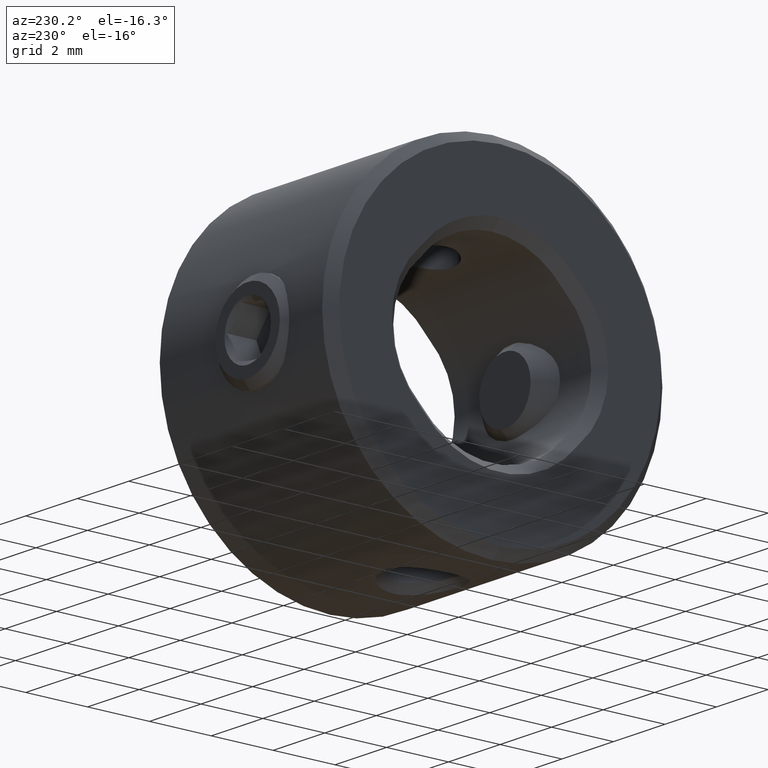
[diagram: clean part render]
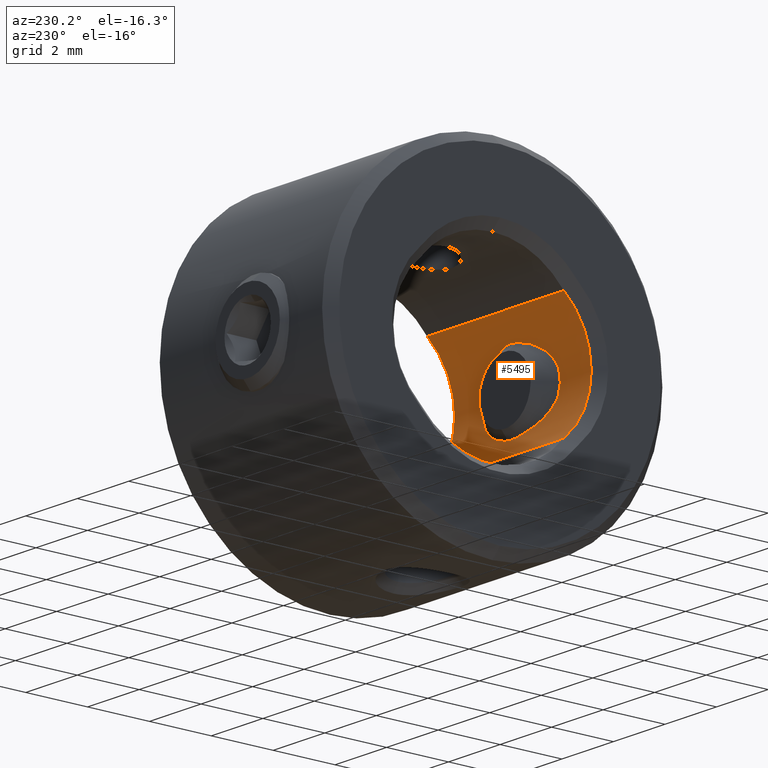
[diagram: same view with one face highlighted and labeled with its STEP entity id]
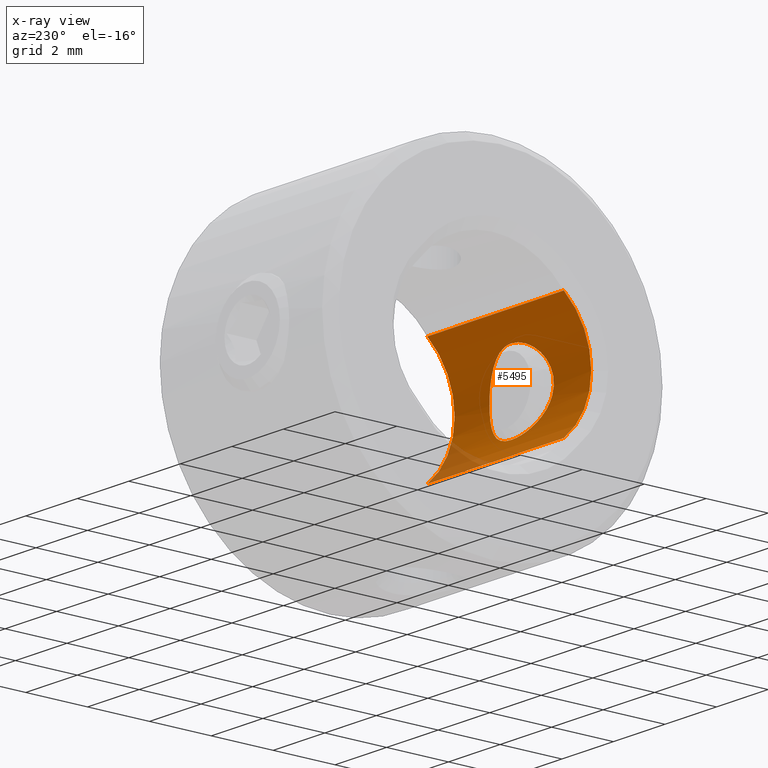
[diagram: x-ray of the same camera — body ghosted, the highlighted face saturated]
A machine part, auxiliary view. The second image highlights one B-rep face of the part: STEP entity #5495.
The next image is the same camera in x-ray: the body ghosted, the highlighted face saturated — about 6% of this face is hidden behind the body in this view.
In plain terms, the highlighted cylindrical surface (partial cylindrical patch) has radius 2.5 mm, axis along (-1, -0, -0).
Its self-contained STEP definition (entity closure, byte-faithful):
#48 = ORIENTED_EDGE ( 'NONE', *, *, #3614, .T. ) ;
#361 = CARTESIAN_POINT ( 'NONE',  ( 2.915840844701439671, -2.865063509461101443, 1.249999999999992450 ) ) ;
#373 = VECTOR ( 'NONE', #2988, 1000.000000000000000 ) ;
#399 = B_SPLINE_CURVE_WITH_KNOTS ( 'NONE', 3,
 ( #5138, #1344, #7044, #7738, #5832, #7101, #6413, #2600, #4554, #7715, #5109, #767, #1957, #3247, #3301, #3895, #5184, #7680, #3929, #3824, #1400, #2037, #3871, #2660 ),
 .UNSPECIFIED., .F., .F.,
 ( 4, 2, 2, 2, 2, 2, 2, 2, 2, 2, 2, 4 ),
 ( 0.003975746136738166417, 0.004223791030582452546, 0.004471835924426737809, 0.004967925712115308333, 0.005464015499803877990, 0.005960105287492448514, 0.006456195075181018171, 0.006952284862869587828, 0.007200329756713873958, 0.007448374650558159220, 0.007696419544402444482, 0.007944464438246730612 ),
 .UNSPECIFIED. ) ;
#420 = CARTESIAN_POINT ( 'NONE',  ( 2.231241294775668127, -2.995084259622760481, -0.9986298626414329416 ) ) ;
#441 = CARTESIAN_POINT ( 'NONE',  ( 3.000000000000000000, -2.865063509461100555, -1.249999999999992450 ) ) ;
#476 = DIRECTION ( 'NONE',  ( -1.000000000000000000, -0.000000000000000000, -0.000000000000000000 ) ) ;
#751 = EDGE_CURVE ( 'NONE', #5448, #3240, #888, .T. ) ;
#767 = CARTESIAN_POINT ( 'NONE',  ( 4.250141954386941201, -3.200070977173732345, 0.1644182679636552180 ) ) ;
#873 = FACE_BOUND ( 'NONE', #7702, .T. ) ;
#888 = B_SPLINE_CURVE_WITH_KNOTS ( 'NONE', 3,
 ( #3553, #361, #7961, #2851, #5391, #2936, #4193, #7380, #5446, #1604, #7402, #2304, #3579, #5415, #2257, #1649, #1627, #420, #4224, #2282, #2966, #441 ),
 .UNSPECIFIED., .F., .F.,
 ( 4, 2, 2, 2, 2, 2, 2, 2, 2, 2, 4 ),
 ( 4.336808689942017736E-19, 0.0002484841335461357805, 0.0004969682670922711274, 0.0009939365341845420379, 0.001490904801276812840, 0.001739388934822948349, 0.001987873068369083642, 0.002484841335461354227, 0.002981809602553624813, 0.003478777869645895398, 0.003975746136738166417 ),
 .UNSPECIFIED. ) ;
#914 = CARTESIAN_POINT ( 'NONE',  ( 0.3000000000000051514, -2.314285714285716722, -1.908947781541719735 ) ) ;
#1090 = ORIENTED_EDGE ( 'NONE', *, *, #6600, .T. ) ;
#1180 = CARTESIAN_POINT ( 'NONE',  ( 0.3000000000000051514, -0.6999999999999998446, 0.000000000000000000 ) ) ;
#1286 = CARTESIAN_POINT ( 'NONE',  ( 0.3000000000000051514, -2.314285714285716722, 1.908947781541719735 ) ) ;
#1344 = CARTESIAN_POINT ( 'NONE',  ( 3.082747710167413224, -2.865063509461102331, -1.249999999999992450 ) ) ;
#1400 = CARTESIAN_POINT ( 'NONE',  ( 3.330331892373990410, -2.888641686364561423, 1.208389420029013506 ) ) ;
#1604 = CARTESIAN_POINT ( 'NONE',  ( 1.815902714462592771, -3.167551767999671419, 0.4087170008795431020 ) ) ;
#1627 = CARTESIAN_POINT ( 'NONE',  ( 2.003922705019841821, -3.080880465181936589, -0.7720631916122219218 ) ) ;
#1649 = CARTESIAN_POINT ( 'NONE',  ( 1.911267064643601188, -3.122740585272807845, -0.6358246832607086230 ) ) ;
#1682 = CARTESIAN_POINT ( 'NONE',  ( 2.799999999999998490, -2.314285714285716722, -1.908947781541719735 ) ) ;
#1868 = AXIS2_PLACEMENT_3D ( 'NONE', #2679, #5766, #2594 ) ;
#1957 = CARTESIAN_POINT ( 'NONE',  ( 4.216490041704343383, -3.182783350853660931, 0.3311210459275517048 ) ) ;
#2017 = CIRCLE ( 'NONE', #6082, 2.500000000000000000 ) ;
#2037 = CARTESIAN_POINT ( 'NONE',  ( 3.168436535701718793, -2.870116157889371244, 1.241351393843918460 ) ) ;
#2171 = VERTEX_POINT ( 'NONE', #914 ) ;
#2257 = CARTESIAN_POINT ( 'NONE',  ( 1.783752647844769168, -3.182657882315417464, -0.3321969457245667612 ) ) ;
#2282 = CARTESIAN_POINT ( 'NONE',  ( 2.667325097743554529, -2.885600500227361920, -1.215780736176815591 ) ) ;
#2304 = CARTESIAN_POINT ( 'NONE',  ( 1.758352590445470431, -3.195793488248094061, 0.1663072989109326827 ) ) ;
#2368 = VERTEX_POINT ( 'NONE', #1286 ) ;
#2594 = DIRECTION ( 'NONE',  ( 0.000000000000000000, 0.000000000000000000, 1.000000000000000000 ) ) ;
#2600 = CARTESIAN_POINT ( 'NONE',  ( 3.997354417713541608, -3.081421157305716196, -0.7704291639371964040 ) ) ;
#2660 = CARTESIAN_POINT ( 'NONE',  ( 3.000000000000000444, -2.865063509461101443, 1.249999999999992450 ) ) ;
#2679 = CARTESIAN_POINT ( 'NONE',  ( 12.67106781186547337, -0.6999999999999998446, 0.000000000000000000 ) ) ;
#2767 = CARTESIAN_POINT ( 'NONE',  ( 5.599999999999998757, -2.314285714285716278, 1.908947781541719735 ) ) ;
#2851 = CARTESIAN_POINT ( 'NONE',  ( 2.671852131206819525, -2.888318513749341676, 1.208971545004054127 ) ) ;
#2858 = ORIENTED_EDGE ( 'NONE', *, *, #3125, .T. ) ;
#2936 = CARTESIAN_POINT ( 'NONE',  ( 2.366161904073806443, -2.951150358516696492, 1.089669154464219414 ) ) ;
#2966 = CARTESIAN_POINT ( 'NONE',  ( 2.834211519171332849, -2.865063509461101443, -1.249999999999992673 ) ) ;
#2988 = DIRECTION ( 'NONE',  ( -1.000000000000000000, -0.000000000000000000, -0.000000000000000000 ) ) ;
#3006 = DIRECTION ( 'NONE',  ( 1.000000000000000000, 0.000000000000000000, 0.000000000000000000 ) ) ;
#3125 = EDGE_CURVE ( 'NONE', #2368, #3501, #3306, .T. ) ;
#3228 = ORIENTED_EDGE ( 'NONE', *, *, #4991, .T. ) ;
#3240 = VERTEX_POINT ( 'NONE', #3781 ) ;
#3247 = CARTESIAN_POINT ( 'NONE',  ( 4.089619926984517484, -3.123146039963758280, 0.6342062624574459351 ) ) ;
#3301 = CARTESIAN_POINT ( 'NONE',  ( 3.997467025394757734, -3.081438818106866595, 0.7704700638437366189 ) ) ;
#3306 = LINE ( 'NONE', #5709, #5789 ) ;
#3320 = CARTESIAN_POINT ( 'NONE',  ( 3.000000000000000444, -2.865063509461101443, 1.249999999999992450 ) ) ;
#3501 = VERTEX_POINT ( 'NONE', #2767 ) ;
#3553 = CARTESIAN_POINT ( 'NONE',  ( 3.000000000000000444, -2.865063509461101443, 1.249999999999992450 ) ) ;
#3579 = CARTESIAN_POINT ( 'NONE',  ( 1.750054779365342483, -3.199972610321720090, 0.08411946271234288508 ) ) ;
#3614 = EDGE_CURVE ( 'NONE', #3501, #3912, #4393, .T. ) ;
#3650 = EDGE_LOOP ( 'NONE', ( #1090, #4025, #2858, #48 ) ) ;
#3781 = CARTESIAN_POINT ( 'NONE',  ( 3.000000000000000000, -2.865063509461100555, -1.249999999999992450 ) ) ;
#3824 = CARTESIAN_POINT ( 'NONE',  ( 3.408173908128133700, -2.901986727467995575, 1.184276154336619591 ) ) ;
#3871 = CARTESIAN_POINT ( 'NONE',  ( 3.084010389090619864, -2.865063509461101887, 1.249999999999992895 ) ) ;
#3895 = CARTESIAN_POINT ( 'NONE',  ( 3.826100497401017986, -3.016709870962550166, 0.9415806469448527727 ) ) ;
#3912 = VERTEX_POINT ( 'NONE', #5728 ) ;
#3929 = CARTESIAN_POINT ( 'NONE',  ( 3.558205620382070666, -2.934666221898641236, 1.121393077551666062 ) ) ;
#4009 = CYLINDRICAL_SURFACE ( 'NONE', #1868, 2.500000000000000000 ) ;
#4025 = ORIENTED_EDGE ( 'NONE', *, *, #7117, .T. ) ;
#4193 = CARTESIAN_POINT ( 'NONE',  ( 2.229851546150187769, -2.995562625489361253, 0.9975286956887760015 ) ) ;
#4224 = CARTESIAN_POINT ( 'NONE',  ( 2.368118909443916120, -2.950655608618321324, -1.090651950187423669 ) ) ;
#4393 = CIRCLE ( 'NONE', #6803, 2.500000000000000000 ) ;
#4406 = DIRECTION ( 'NONE',  ( 1.000000000000000000, 0.000000000000000000, 0.000000000000000000 ) ) ;
#4554 = CARTESIAN_POINT ( 'NONE',  ( 4.089783274520144118, -3.123230000185081678, -0.6335029137292848000 ) ) ;
#4991 = EDGE_CURVE ( 'NONE', #3240, #5448, #399, .T. ) ;
#5109 = CARTESIAN_POINT ( 'NONE',  ( 4.249857119912413772, -3.199928559976018771, -0.1665696633928861747 ) ) ;
#5117 = FACE_OUTER_BOUND ( 'NONE', #3650, .T. ) ;
#5138 = CARTESIAN_POINT ( 'NONE',  ( 3.000000000000000000, -2.865063509461100555, -1.249999999999992450 ) ) ;
#5184 = CARTESIAN_POINT ( 'NONE',  ( 3.764251658089137198, -2.995112897923289275, 0.9924166061392385441 ) ) ;
#5391 = CARTESIAN_POINT ( 'NONE',  ( 2.591900562673823849, -2.901965474739915063, 1.184319318749623040 ) ) ;
#5415 = CARTESIAN_POINT ( 'NONE',  ( 1.749891244195434625, -3.200054377893543744, -0.1657849602302099157 ) ) ;
#5446 = CARTESIAN_POINT ( 'NONE',  ( 1.910494867957621246, -3.123101899902601897, 0.6340523960631931910 ) ) ;
#5448 = VERTEX_POINT ( 'NONE', #3320 ) ;
#5495 = ADVANCED_FACE ( 'NONE', ( #873, #5117 ), #4009, .F. ) ;
#5709 = CARTESIAN_POINT ( 'NONE',  ( 2.799999999999998490, -2.314285714285716722, 1.908947781541719735 ) ) ;
#5728 = CARTESIAN_POINT ( 'NONE',  ( 5.599999999999998757, -2.314285714285716722, -1.908947781541719957 ) ) ;
#5766 = DIRECTION ( 'NONE',  ( -1.000000000000000000, -0.000000000000000000, -0.000000000000000000 ) ) ;
#5789 = VECTOR ( 'NONE', #4406, 1000.000000000000000 ) ;
#5832 = CARTESIAN_POINT ( 'NONE',  ( 3.407317509417352230, -2.901798691018484533, -1.184638656238071741 ) ) ;
#6082 = AXIS2_PLACEMENT_3D ( 'NONE', #1180, #476, #6118 ) ;
#6118 = DIRECTION ( 'NONE',  ( 0.000000000000000000, 0.000000000000000000, -1.000000000000000000 ) ) ;
#6413 = CARTESIAN_POINT ( 'NONE',  ( 3.770283028601655317, -2.995601628785430126, -0.9974672861933593371 ) ) ;
#6600 = EDGE_CURVE ( 'NONE', #3912, #2171, #8072, .T. ) ;
#6739 = ORIENTED_EDGE ( 'NONE', *, *, #751, .T. ) ;
#6803 = AXIS2_PLACEMENT_3D ( 'NONE', #7498, #3006, #8102 ) ;
#7044 = CARTESIAN_POINT ( 'NONE',  ( 3.167064545487901395, -2.870009906054213022, -1.241535497329311788 ) ) ;
#7101 = CARTESIAN_POINT ( 'NONE',  ( 3.635072175223577062, -2.951412080653863956, -1.089168733292893876 ) ) ;
#7117 = EDGE_CURVE ( 'NONE', #2171, #2368, #2017, .T. ) ;
#7380 = CARTESIAN_POINT ( 'NONE',  ( 2.003080890771157918, -3.081244808271923485, 0.7709373705718098879 ) ) ;
#7402 = CARTESIAN_POINT ( 'NONE',  ( 1.791107352499659910, -3.179660920268837287, 0.3285193664674008751 ) ) ;
#7498 = CARTESIAN_POINT ( 'NONE',  ( 5.599999999999998757, -0.6999999999999998446, 0.000000000000000000 ) ) ;
#7680 = CARTESIAN_POINT ( 'NONE',  ( 3.630738978149000928, -2.954172636662570461, 1.082192061732330401 ) ) ;
#7702 = EDGE_LOOP ( 'NONE', ( #6739, #3228 ) ) ;
#7715 = CARTESIAN_POINT ( 'NONE',  ( 4.215610503302445800, -3.182362774477648593, -0.3335335536166079695 ) ) ;
#7738 = CARTESIAN_POINT ( 'NONE',  ( 3.328958807448302082, -2.888434675061639201, -1.208762613787343509 ) ) ;
#7961 = CARTESIAN_POINT ( 'NONE',  ( 2.833434398043288560, -2.869977187340877034, 1.241591366218288028 ) ) ;
#8072 = LINE ( 'NONE', #1682, #373 ) ;
#8102 = DIRECTION ( 'NONE',  ( 0.000000000000000000, 0.000000000000000000, -1.000000000000000000 ) ) ;